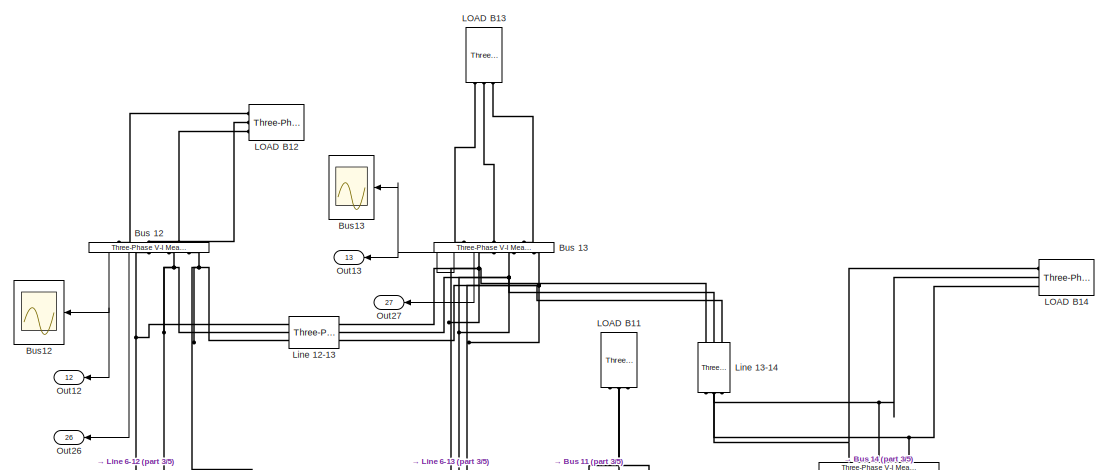
[diagram: root canvas - part 1/5, top center region]
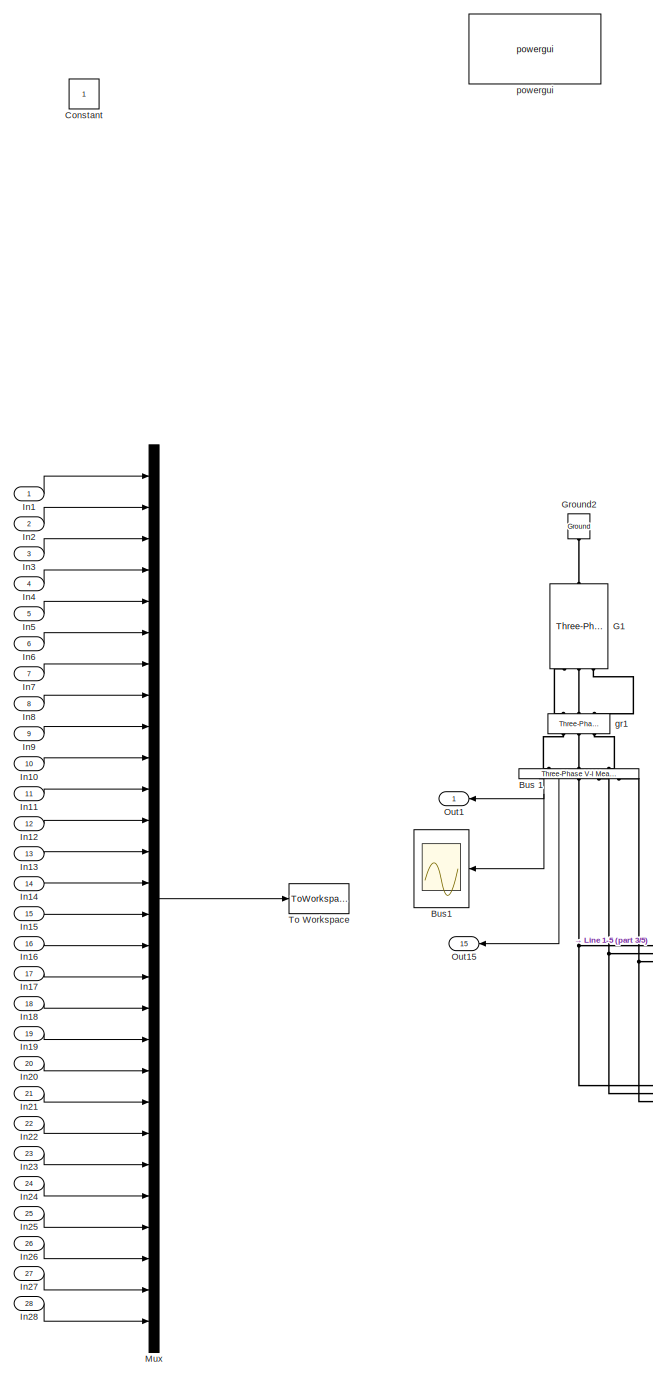
[diagram: root canvas - part 2/5, left side, full height]
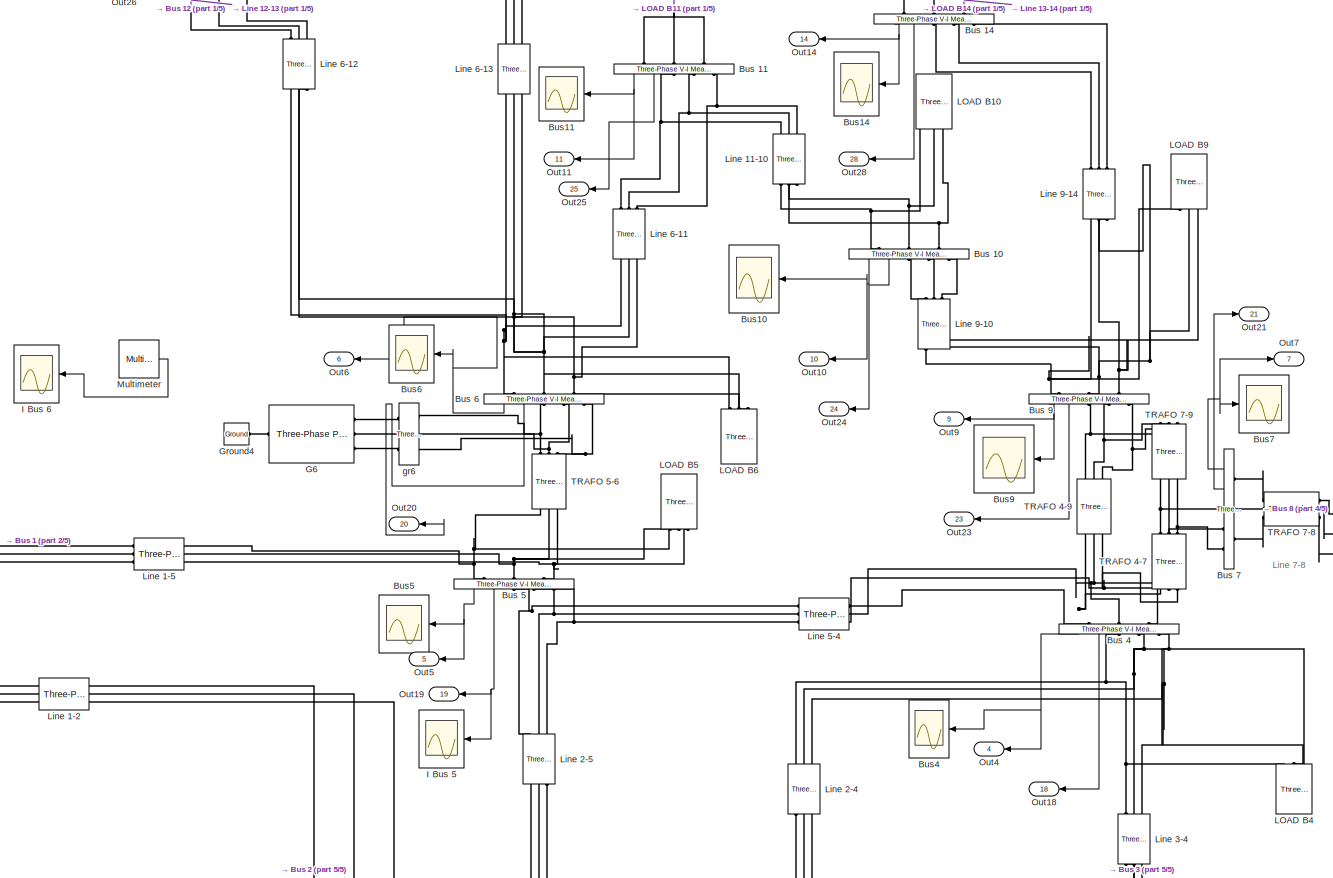
[diagram: root canvas - part 3/5, central region]
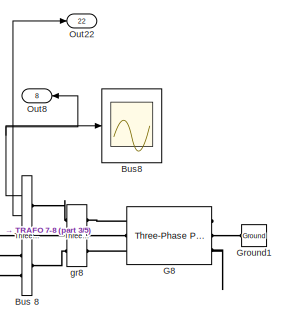
[diagram: root canvas - part 4/5, middle right region]
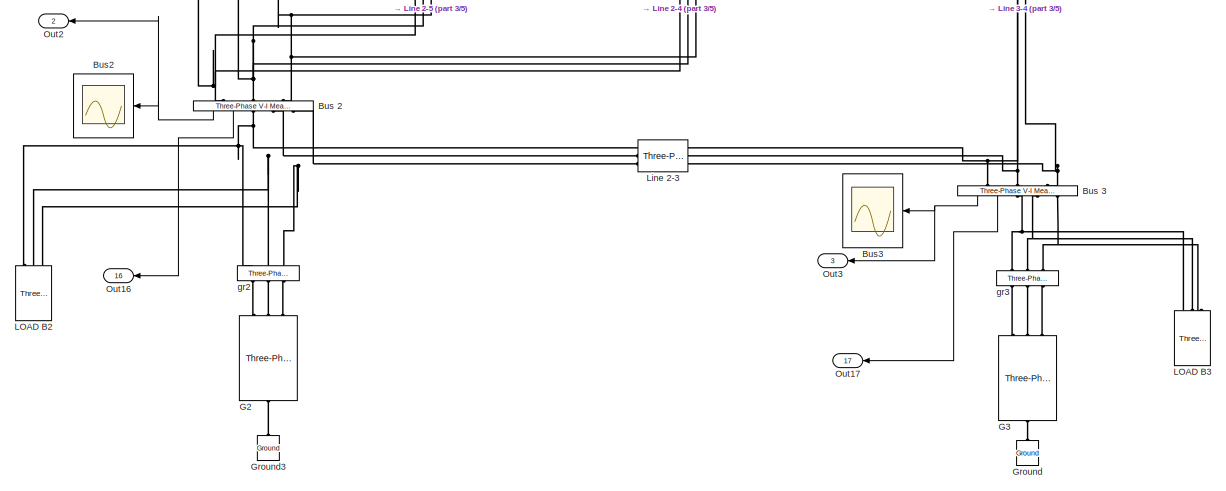
[diagram: root canvas - part 5/5, bottom center region]
MODEL slx_b9c40e7a43bc
KIND model
CONFIG AbsTol = auto
CONFIG EnableMultiTasking = on
CONFIG FixedStep = auto
CONFIG MaxStep = auto
CONFIG MinStep = auto
CONFIG RelTol = 1e-6
CONFIG SampleTimeConstraint = Unconstrained
CONFIG SolverName = ode15s
CONFIG StartTime = 0
CONFIG StopTime = 30/60
BLOCK [Reference] Bus 1  REF=spsThreePhaseVIMeasurementLib/Three-Phase
V-I Measurement
  NameLocation = left
  Ports = [0, 2, 0, 0, 0, 3, 3]
  SourceBlock = spsThreePhaseVIMeasurementLib/Three-Phase\nV-I Measurement
  SourceProductBaseCode = PS
  SourceType = Three-Phase VI Measurement
BLOCK [Reference] Bus 10  REF=spsThreePhaseVIMeasurementLib/Three-Phase
V-I Measurement
  NameLocation = left
  Ports = [0, 2, 0, 0, 0, 3, 3]
  SourceBlock = spsThreePhaseVIMeasurementLib/Three-Phase\nV-I Measurement
  SourceProductBaseCode = PS
  SourceType = Three-Phase VI Measurement
BLOCK [Reference] Bus 11  REF=spsThreePhaseVIMeasurementLib/Three-Phase
V-I Measurement
  NameLocation = left
  Ports = [0, 2, 0, 0, 0, 3, 3]
  SourceBlock = spsThreePhaseVIMeasurementLib/Three-Phase\nV-I Measurement
  SourceProductBaseCode = PS
  SourceType = Three-Phase VI Measurement
BLOCK [Reference] Bus 12  REF=spsThreePhaseVIMeasurementLib/Three-Phase
V-I Measurement
  NameLocation = left
  Ports = [0, 2, 0, 0, 0, 3, 3]
  SourceBlock = spsThreePhaseVIMeasurementLib/Three-Phase\nV-I Measurement
  SourceProductBaseCode = PS
  SourceType = Three-Phase VI Measurement
BLOCK [Reference] Bus 13  REF=spsThreePhaseVIMeasurementLib/Three-Phase
V-I Measurement
  NameLocation = left
  Ports = [0, 2, 0, 0, 0, 3, 3]
  SourceBlock = spsThreePhaseVIMeasurementLib/Three-Phase\nV-I Measurement
  SourceProductBaseCode = PS
  SourceType = Three-Phase VI Measurement
BLOCK [Reference] Bus 14  REF=spsThreePhaseVIMeasurementLib/Three-Phase
V-I Measurement
  NameLocation = left
  Ports = [0, 2, 0, 0, 0, 3, 3]
  SourceBlock = spsThreePhaseVIMeasurementLib/Three-Phase\nV-I Measurement
  SourceProductBaseCode = PS
  SourceType = Three-Phase VI Measurement
BLOCK [Reference] Bus 2  REF=spsThreePhaseVIMeasurementLib/Three-Phase
V-I Measurement
  NameLocation = left
  Ports = [0, 2, 0, 0, 0, 3, 3]
  SourceBlock = spsThreePhaseVIMeasurementLib/Three-Phase\nV-I Measurement
  SourceProductBaseCode = PS
  SourceType = Three-Phase VI Measurement
BLOCK [Reference] Bus 3  REF=spsThreePhaseVIMeasurementLib/Three-Phase
V-I Measurement
  NameLocation = left
  Ports = [0, 2, 0, 0, 0, 3, 3]
  SourceBlock = spsThreePhaseVIMeasurementLib/Three-Phase\nV-I Measurement
  SourceProductBaseCode = PS
  SourceType = Three-Phase VI Measurement
BLOCK [Reference] Bus 4  REF=spsThreePhaseVIMeasurementLib/Three-Phase
V-I Measurement
  NameLocation = left
  Ports = [0, 2, 0, 0, 0, 3, 3]
  SourceBlock = spsThreePhaseVIMeasurementLib/Three-Phase\nV-I Measurement
  SourceProductBaseCode = PS
  SourceType = Three-Phase VI Measurement
BLOCK [Reference] Bus 5  REF=spsThreePhaseVIMeasurementLib/Three-Phase
V-I Measurement
  NameLocation = left
  Ports = [0, 2, 0, 0, 0, 3, 3]
  SourceBlock = spsThreePhaseVIMeasurementLib/Three-Phase\nV-I Measurement
  SourceProductBaseCode = PS
  SourceType = Three-Phase VI Measurement
BLOCK [Reference] Bus 6  REF=spsThreePhaseVIMeasurementLib/Three-Phase
V-I Measurement
  NameLocation = left
  Ports = [0, 2, 0, 0, 0, 3, 3]
  SourceBlock = spsThreePhaseVIMeasurementLib/Three-Phase\nV-I Measurement
  SourceProductBaseCode = PS
  SourceType = Three-Phase VI Measurement
BLOCK [Reference] Bus 7  REF=spsThreePhaseVIMeasurementLib/Three-Phase
V-I Measurement
  NameLocation = top
  Ports = [0, 2, 0, 0, 0, 3, 3]
  SourceBlock = spsThreePhaseVIMeasurementLib/Three-Phase\nV-I Measurement
  SourceProductBaseCode = PS
  SourceType = Three-Phase VI Measurement
BLOCK [Reference] Bus 8  REF=spsThreePhaseVIMeasurementLib/Three-Phase
V-I Measurement
  NameLocation = top
  Ports = [0, 2, 0, 0, 0, 3, 3]
  SourceBlock = spsThreePhaseVIMeasurementLib/Three-Phase\nV-I Measurement
  SourceProductBaseCode = PS
  SourceType = Three-Phase VI Measurement
BLOCK [Reference] Bus 9  REF=spsThreePhaseVIMeasurementLib/Three-Phase
V-I Measurement
  NameLocation = left
  Ports = [0, 2, 0, 0, 0, 3, 3]
  SourceBlock = spsThreePhaseVIMeasurementLib/Three-Phase\nV-I Measurement
  SourceProductBaseCode = PS
  SourceType = Three-Phase VI Measurement
BLOCK [Scope] Bus1
  Floating = off
  NumInputPorts = 1
  Ports = [1]
  ScopeSpecificationString = Simulink.scopes.TimeScopeBlockCfg('CurrentConfiguration', extmgr.ConfigurationSet(extmgr.Configuration('Core','General UI',true),extmgr.Configuration('Core','Source UI',true),extmgr.Configuration('Sources','WiredSimulink',true,'DataLoggingVariableName','ScopeData8','DataLoggingSaveFormat','StructureWithTime','DataLoggingDecimation','1','DataLoggingDecimateData',true),extmgr.Configuration('Visuals'...<+1766ch>
BLOCK [Scope] Bus10
  Floating = off
  NumInputPorts = 1
  Ports = [1]
  ScopeSpecificationString = Simulink.scopes.TimeScopeBlockCfg('CurrentConfiguration', extmgr.ConfigurationSet(extmgr.Configuration('Core','General UI',true),extmgr.Configuration('Core','Source UI',true),extmgr.Configuration('Sources','WiredSimulink',true,'DataLoggingVariableName','ScopeData9','DataLoggingSaveFormat','StructureWithTime','DataLoggingDecimation','100','DataLoggingDecimateData',true),extmgr.Configuration('Visual...<+1784ch>
BLOCK [Scope] Bus11
  Floating = off
  NumInputPorts = 1
  Ports = [1]
  ScopeSpecificationString = Simulink.scopes.TimeScopeBlockCfg('CurrentConfiguration', extmgr.ConfigurationSet(extmgr.Configuration('Core','General UI',true),extmgr.Configuration('Core','Source UI',true),extmgr.Configuration('Sources','WiredSimulink',true,'DataLoggingVariableName','ScopeData7','DataLoggingSaveFormat','StructureWithTime','DataLoggingDecimation','1','DataLoggingDecimateData',true),extmgr.Configuration('Visuals'...<+1781ch>
BLOCK [Scope] Bus12
  Floating = off
  NumInputPorts = 1
  Ports = [1]
  ScopeSpecificationString = Simulink.scopes.TimeScopeBlockCfg('CurrentConfiguration', extmgr.ConfigurationSet(extmgr.Configuration('Core','General UI',true),extmgr.Configuration('Core','Source UI',true),extmgr.Configuration('Sources','WiredSimulink',true,'DataLoggingVariableName','ScopeData11','DataLoggingSaveFormat','StructureWithTime','DataLoggingDecimation','100','DataLoggingDecimateData',true),extmgr.Configuration('Visua...<+1757ch>
BLOCK [Scope] Bus13
  Floating = off
  NumInputPorts = 1
  Ports = [1]
  ScopeSpecificationString = Simulink.scopes.TimeScopeBlockCfg('CurrentConfiguration', extmgr.ConfigurationSet(extmgr.Configuration('Core','General UI',true),extmgr.Configuration('Core','Source UI',true),extmgr.Configuration('Sources','WiredSimulink',true,'DataLoggingVariableName','ScopeData12','DataLoggingSaveFormat','StructureWithTime','DataLoggingDecimation','100','DataLoggingDecimateData',true),extmgr.Configuration('Visua...<+1784ch>
BLOCK [Scope] Bus14
  Floating = off
  NumInputPorts = 1
  Ports = [1]
  ScopeSpecificationString = Simulink.scopes.TimeScopeBlockCfg('CurrentConfiguration', extmgr.ConfigurationSet(extmgr.Configuration('Core','General UI',true),extmgr.Configuration('Core','Source UI',true),extmgr.Configuration('Sources','WiredSimulink',true,'DataLoggingVariableName','ScopeData13','DataLoggingSaveFormat','StructureWithTime','DataLoggingDecimation','100','DataLoggingDecimateData',true),extmgr.Configuration('Visua...<+1765ch>
BLOCK [Scope] Bus2
  Floating = off
  NumInputPorts = 1
  Ports = [1]
  ScopeSpecificationString = Simulink.scopes.TimeScopeBlockCfg('CurrentConfiguration', extmgr.ConfigurationSet(extmgr.Configuration('Core','General UI',true),extmgr.Configuration('Core','Source UI',true),extmgr.Configuration('Sources','WiredSimulink',true,'DataLoggingVariableName','ScopeData18','DataLoggingSaveFormat','StructureWithTime','DataLoggingDecimation','1','DataLoggingDecimateData',true),extmgr.Configuration('Visuals...<+1779ch>
BLOCK [Scope] Bus3
  Floating = off
  NumInputPorts = 1
  Ports = [1]
  ScopeSpecificationString = Simulink.scopes.TimeScopeBlockCfg('CurrentConfiguration', extmgr.ConfigurationSet(extmgr.Configuration('Core','General UI',true),extmgr.Configuration('Core','Source UI',true),extmgr.Configuration('Sources','WiredSimulink',true,'DataLoggingSaveFormat','StructureWithTime','DataLoggingDecimation','1','DataLoggingDecimateData',true),extmgr.Configuration('Visuals','Time Domain',true,'SerializedDisplays...<+1739ch>
BLOCK [Scope] Bus4
  Floating = off
  NumInputPorts = 1
  Ports = [1]
  ScopeSpecificationString = Simulink.scopes.TimeScopeBlockCfg('CurrentConfiguration', extmgr.ConfigurationSet(extmgr.Configuration('Core','General UI',true),extmgr.Configuration('Core','Source UI',true),extmgr.Configuration('Sources','WiredSimulink',true,'DataLoggingVariableName','ScopeData2','DataLoggingSaveFormat','StructureWithTime','DataLoggingDecimation','1','DataLoggingDecimateData',true),extmgr.Configuration('Visuals'...<+1753ch>
BLOCK [Scope] Bus5
  Floating = off
  NumInputPorts = 1
  Ports = [1]
  ScopeSpecificationString = Simulink.scopes.TimeScopeBlockCfg('CurrentConfiguration', extmgr.ConfigurationSet(extmgr.Configuration('Core','General UI',true),extmgr.Configuration('Core','Source UI',true),extmgr.Configuration('Sources','WiredSimulink',true,'DataLoggingVariableName','ScopeData4','DataLoggingSaveFormat','StructureWithTime','DataLoggingDecimation','100','DataLoggingDecimateData',true),extmgr.Configuration('Visual...<+1778ch>
BLOCK [Scope] Bus6
  Floating = off
  NumInputPorts = 1
  Ports = [1]
  ScopeSpecificationString = Simulink.scopes.TimeScopeBlockCfg('CurrentConfiguration', extmgr.ConfigurationSet(extmgr.Configuration('Core','General UI',true),extmgr.Configuration('Core','Source UI',true),extmgr.Configuration('Sources','WiredSimulink',true,'DataLoggingVariableName','ScopeData19','DataLoggingSaveFormat','StructureWithTime','DataLoggingDecimation','1','DataLoggingDecimateData',true),extmgr.Configuration('Visuals...<+1779ch>
BLOCK [Scope] Bus7
  Floating = off
  NameLocation = top
  NumInputPorts = 1
  Ports = [1]
  ScopeSpecificationString = Simulink.scopes.TimeScopeBlockCfg('CurrentConfiguration', extmgr.ConfigurationSet(extmgr.Configuration('Core','General UI',true),extmgr.Configuration('Core','Source UI',true),extmgr.Configuration('Sources','WiredSimulink',true,'DataLoggingVariableName','ScopeData5','DataLoggingSaveFormat','StructureWithTime','DataLoggingDecimation','1','DataLoggingDecimateData',true),extmgr.Configuration('Visuals'...<+1761ch>
BLOCK [Scope] Bus8
  Floating = off
  NameLocation = top
  NumInputPorts = 1
  Ports = [1]
  ScopeSpecificationString = Simulink.scopes.TimeScopeBlockCfg('CurrentConfiguration', extmgr.ConfigurationSet(extmgr.Configuration('Core','General UI',true),extmgr.Configuration('Core','Source UI',true),extmgr.Configuration('Sources','WiredSimulink',true,'DataLoggingVariableName','ScopeData6','DataLoggingSaveFormat','StructureWithTime','DataLoggingDecimation','1','DataLoggingDecimateData',true),extmgr.Configuration('Visuals'...<+1780ch>
BLOCK [Scope] Bus9
  Floating = off
  NumInputPorts = 1
  Ports = [1]
  ScopeSpecificationString = Simulink.scopes.TimeScopeBlockCfg('CurrentConfiguration', extmgr.ConfigurationSet(extmgr.Configuration('Core','General UI',true),extmgr.Configuration('Core','Source UI',true),extmgr.Configuration('Sources','WiredSimulink',true,'DataLoggingVariableName','ScopeData1','DataLoggingSaveFormat','StructureWithTime','DataLoggingDecimation','1','DataLoggingDecimateData',true),extmgr.Configuration('Visuals'...<+1778ch>
BLOCK [Constant] Constant
  IOType = siggen
BLOCK [Reference] G1  REF=spsThreePhaseProgrammableVoltageSourceLib/Three-Phase
Programmable
Voltage Source
  NameLocation = left
  Ports = [0, 0, 0, 0, 0, 1, 3]
  SourceBlock = spsThreePhaseProgrammableVoltageSourceLib/Three-Phase\nProgrammable\nVoltage Source
  SourceProductBaseCode = PS
  SourceType = Three-Phase Programmable Voltage Source
BLOCK [Reference] G2  REF=spsThreePhaseProgrammableVoltageSourceLib/Three-Phase
Programmable
Voltage Source
  NameLocation = right
  Ports = [0, 0, 0, 0, 0, 1, 3]
  SourceBlock = spsThreePhaseProgrammableVoltageSourceLib/Three-Phase\nProgrammable\nVoltage Source
  SourceProductBaseCode = PS
  SourceType = Three-Phase Programmable Voltage Source
BLOCK [Reference] G3  REF=spsThreePhaseProgrammableVoltageSourceLib/Three-Phase
Programmable
Voltage Source
  NameLocation = right
  Ports = [0, 0, 0, 0, 0, 1, 3]
  SourceBlock = spsThreePhaseProgrammableVoltageSourceLib/Three-Phase\nProgrammable\nVoltage Source
  SourceProductBaseCode = PS
  SourceType = Three-Phase Programmable Voltage Source
BLOCK [Reference] G6  REF=spsThreePhaseProgrammableVoltageSourceLib/Three-Phase
Programmable
Voltage Source
  Ports = [0, 0, 0, 0, 0, 1, 3]
  SourceBlock = spsThreePhaseProgrammableVoltageSourceLib/Three-Phase\nProgrammable\nVoltage Source
  SourceProductBaseCode = PS
  SourceType = Three-Phase Programmable Voltage Source
BLOCK [Reference] G8  REF=spsThreePhaseProgrammableVoltageSourceLib/Three-Phase
Programmable
Voltage Source
  NameLocation = top
  Ports = [0, 0, 0, 0, 0, 1, 3]
  SourceBlock = spsThreePhaseProgrammableVoltageSourceLib/Three-Phase\nProgrammable\nVoltage Source
  SourceProductBaseCode = PS
  SourceType = Three-Phase Programmable Voltage Source
BLOCK [Reference] Ground  REF=spsGroundLib/Ground
  NameLocation = right
  Ports = [0, 0, 0, 0, 0, 1]
  SourceBlock = spsGroundLib/Ground
  SourceProductBaseCode = PS
  SourceType = Ground
BLOCK [Reference] Ground1  REF=spsGroundLib/Ground
  NameLocation = top
  Ports = [0, 0, 0, 0, 0, 1]
  SourceBlock = spsGroundLib/Ground
  SourceProductBaseCode = PS
  SourceType = Ground
BLOCK [Reference] Ground2  REF=spsGroundLib/Ground
  NameLocation = left
  Ports = [0, 0, 0, 0, 0, 1]
  SourceBlock = spsGroundLib/Ground
  SourceProductBaseCode = PS
  SourceType = Ground
BLOCK [Reference] Ground3  REF=spsGroundLib/Ground
  NameLocation = right
  Ports = [0, 0, 0, 0, 0, 1]
  SourceBlock = spsGroundLib/Ground
  SourceProductBaseCode = PS
  SourceType = Ground
BLOCK [Reference] Ground4  REF=spsGroundLib/Ground
  Ports = [0, 0, 0, 0, 0, 1]
  SourceBlock = spsGroundLib/Ground
  SourceProductBaseCode = PS
  SourceType = Ground
BLOCK [Scope] I Bus 5
  Floating = off
  NumInputPorts = 1
  Ports = [1]
  ScopeSpecificationString = Simulink.scopes.TimeScopeBlockCfg('CurrentConfiguration', extmgr.ConfigurationSet(extmgr.Configuration('Core','General UI',true),extmgr.Configuration('Core','Source UI',true),extmgr.Configuration('Sources','WiredSimulink',true,'DataLoggingVariableName','ScopeData2','DataLoggingSaveFormat','StructureWithTime','DataLoggingDecimation','1','DataLoggingDecimateData',true),extmgr.Configuration('Visuals'...<+1778ch>
BLOCK [Scope] I Bus 6  
  Floating = off
  NumInputPorts = 1
  Ports = [1]
  ScopeSpecificationString = Simulink.scopes.TimeScopeBlockCfg('CurrentConfiguration', extmgr.ConfigurationSet(extmgr.Configuration('Core','General UI',true),extmgr.Configuration('Core','Source UI',true),extmgr.Configuration('Sources','WiredSimulink',true,'DataLoggingVariableName','ScopeData1','DataLoggingSaveFormat','StructureWithTime','DataLoggingDecimation','1','DataLoggingDecimateData',true),extmgr.Configuration('Visuals'...<+1772ch>
BLOCK [Inport] In1
BLOCK [Inport] In10
  Port = 10
BLOCK [Inport] In11
  Port = 11
BLOCK [Inport] In12
  Port = 12
BLOCK [Inport] In13
  Port = 13
BLOCK [Inport] In14
  Port = 14
BLOCK [Inport] In15
  Port = 15
BLOCK [Inport] In16
  Port = 16
BLOCK [Inport] In17
  Port = 17
BLOCK [Inport] In18
  Port = 18
BLOCK [Inport] In19
  Port = 19
BLOCK [Inport] In2
  Port = 2
BLOCK [Inport] In20
  Port = 20
BLOCK [Inport] In21
  Port = 21
BLOCK [Inport] In22
  Port = 22
BLOCK [Inport] In23
  Port = 23
BLOCK [Inport] In24
  Port = 24
BLOCK [Inport] In25
  Port = 25
BLOCK [Inport] In26
  Port = 26
BLOCK [Inport] In27
  Port = 27
BLOCK [Inport] In28
  Port = 28
BLOCK [Inport] In3
  Port = 3
BLOCK [Inport] In4
  Port = 4
BLOCK [Inport] In5
  Port = 5
BLOCK [Inport] In6
  Port = 6
BLOCK [Inport] In7
  Port = 7
BLOCK [Inport] In8
  Port = 8
BLOCK [Inport] In9
  Port = 9
BLOCK [Reference] LOAD B10  REF=spsThreePhaseSeriesRLCLoadLib/Three-Phase
Series RLC Load
  AttributesFormatString = \n
  NameLocation = left
  Ports = [0, 0, 0, 0, 0, 3]
  SourceBlock = spsThreePhaseSeriesRLCLoadLib/Three-Phase\nSeries RLC Load
  SourceProductBaseCode = PS
  SourceType = Three-Phase Series RLC Load
BLOCK [Reference] LOAD B11  REF=spsThreePhaseSeriesRLCLoadLib/Three-Phase
Series RLC Load
  AttributesFormatString = \n
  NameLocation = left
  Ports = [0, 0, 0, 0, 0, 3]
  SourceBlock = spsThreePhaseSeriesRLCLoadLib/Three-Phase\nSeries RLC Load
  SourceProductBaseCode = PS
  SourceType = Three-Phase Series RLC Load
BLOCK [Reference] LOAD B12  REF=spsThreePhaseSeriesRLCLoadLib/Three-Phase
Series RLC Load
  AttributesFormatString = \n
  NameLocation = top
  Ports = [0, 0, 0, 0, 0, 3]
  SourceBlock = spsThreePhaseSeriesRLCLoadLib/Three-Phase\nSeries RLC Load
  SourceProductBaseCode = PS
  SourceType = Three-Phase Series RLC Load
BLOCK [Reference] LOAD B13  REF=spsThreePhaseSeriesRLCLoadLib/Three-Phase
Series RLC Load
  AttributesFormatString = \n
  NameLocation = left
  Ports = [0, 0, 0, 0, 0, 3]
  SourceBlock = spsThreePhaseSeriesRLCLoadLib/Three-Phase\nSeries RLC Load
  SourceProductBaseCode = PS
  SourceType = Three-Phase Series RLC Load
BLOCK [Reference] LOAD B14  REF=spsThreePhaseSeriesRLCLoadLib/Three-Phase
Series RLC Load
  AttributesFormatString = \n
  NameLocation = top
  Ports = [0, 0, 0, 0, 0, 3]
  SourceBlock = spsThreePhaseSeriesRLCLoadLib/Three-Phase\nSeries RLC Load
  SourceProductBaseCode = PS
  SourceType = Three-Phase Series RLC Load
BLOCK [Reference] LOAD B2  REF=spsThreePhaseSeriesRLCLoadLib/Three-Phase
Series RLC Load
  AttributesFormatString = \n
  NameLocation = right
  Ports = [0, 0, 0, 0, 0, 3]
  SourceBlock = spsThreePhaseSeriesRLCLoadLib/Three-Phase\nSeries RLC Load
  SourceProductBaseCode = PS
  SourceType = Three-Phase Series RLC Load
BLOCK [Reference] LOAD B3  REF=spsThreePhaseSeriesRLCLoadLib/Three-Phase
Series RLC Load
  AttributesFormatString = \n
  NameLocation = right
  Ports = [0, 0, 0, 0, 0, 3]
  SourceBlock = spsThreePhaseSeriesRLCLoadLib/Three-Phase\nSeries RLC Load
  SourceProductBaseCode = PS
  SourceType = Three-Phase Series RLC Load
BLOCK [Reference] LOAD B4  REF=spsThreePhaseSeriesRLCLoadLib/Three-Phase
Series RLC Load
  AttributesFormatString = \n
  NameLocation = right
  Ports = [0, 0, 0, 0, 0, 3]
  SourceBlock = spsThreePhaseSeriesRLCLoadLib/Three-Phase\nSeries RLC Load
  SourceProductBaseCode = PS
  SourceType = Three-Phase Series RLC Load
BLOCK [Reference] LOAD B5  REF=spsThreePhaseSeriesRLCLoadLib/Three-Phase
Series RLC Load
  AttributesFormatString = \n
  NameLocation = left
  Ports = [0, 0, 0, 0, 0, 3]
  SourceBlock = spsThreePhaseSeriesRLCLoadLib/Three-Phase\nSeries RLC Load
  SourceProductBaseCode = PS
  SourceType = Three-Phase Series RLC Load
BLOCK [Reference] LOAD B6  REF=spsThreePhaseSeriesRLCLoadLib/Three-Phase
Series RLC Load
  AttributesFormatString = \n
  NameLocation = right
  Ports = [0, 0, 0, 0, 0, 3]
  SourceBlock = spsThreePhaseSeriesRLCLoadLib/Three-Phase\nSeries RLC Load
  SourceProductBaseCode = PS
  SourceType = Three-Phase Series RLC Load
BLOCK [Reference] LOAD B9  REF=spsThreePhaseSeriesRLCLoadLib/Three-Phase
Series RLC Load
  AttributesFormatString = \n
  NameLocation = left
  Ports = [0, 0, 0, 0, 0, 3]
  SourceBlock = spsThreePhaseSeriesRLCLoadLib/Three-Phase\nSeries RLC Load
  SourceProductBaseCode = PS
  SourceType = Three-Phase Series RLC Load
BLOCK [Reference] Line 1-2  REF=spsThreePhasePISectionLineLib/Three-Phase
PI Section Line
  AttributesFormatString = \n
  Ports = [0, 0, 0, 0, 0, 3, 3]
  SourceBlock = spsThreePhasePISectionLineLib/Three-Phase\nPI Section Line
  SourceProductBaseCode = PS
  SourceType = Three-Phase PI Section Line
BLOCK [Reference] Line 1-5  REF=spsThreePhasePISectionLineLib/Three-Phase
PI Section Line
  AttributesFormatString = \n
  Ports = [0, 0, 0, 0, 0, 3, 3]
  SourceBlock = spsThreePhasePISectionLineLib/Three-Phase\nPI Section Line
  SourceProductBaseCode = PS
  SourceType = Three-Phase PI Section Line
BLOCK [Reference] Line 11-10  REF=spsThreePhasePISectionLineLib/Three-Phase
PI Section Line
  AttributesFormatString = \n
  NameLocation = left
  Ports = [0, 0, 0, 0, 0, 3, 3]
  SourceBlock = spsThreePhasePISectionLineLib/Three-Phase\nPI Section Line
  SourceProductBaseCode = PS
  SourceType = Three-Phase PI Section Line
BLOCK [Reference] Line 12-13   REF=spsThreePhasePISectionLineLib/Three-Phase
PI Section Line
  AttributesFormatString = \n
  Ports = [0, 0, 0, 0, 0, 3, 3]
  SourceBlock = spsThreePhasePISectionLineLib/Three-Phase\nPI Section Line
  SourceProductBaseCode = PS
  SourceType = Three-Phase PI Section Line
BLOCK [Reference] Line 13-14  REF=spsThreePhasePISectionLineLib/Three-Phase
PI Section Line
  AttributesFormatString = \n
  NameLocation = left
  Ports = [0, 0, 0, 0, 0, 3, 3]
  SourceBlock = spsThreePhasePISectionLineLib/Three-Phase\nPI Section Line
  SourceProductBaseCode = PS
  SourceType = Three-Phase PI Section Line
BLOCK [Reference] Line 2-3  REF=spsThreePhasePISectionLineLib/Three-Phase
PI Section Line
  AttributesFormatString = \n
  Ports = [0, 0, 0, 0, 0, 3, 3]
  SourceBlock = spsThreePhasePISectionLineLib/Three-Phase\nPI Section Line
  SourceProductBaseCode = PS
  SourceType = Three-Phase PI Section Line
BLOCK [Reference] Line 2-4  REF=spsThreePhasePISectionLineLib/Three-Phase
PI Section Line
  AttributesFormatString = \n
  NameLocation = left
  Ports = [0, 0, 0, 0, 0, 3, 3]
  SourceBlock = spsThreePhasePISectionLineLib/Three-Phase\nPI Section Line
  SourceProductBaseCode = PS
  SourceType = Three-Phase PI Section Line
BLOCK [Reference] Line 2-5  REF=spsThreePhasePISectionLineLib/Three-Phase
PI Section Line
  AttributesFormatString = \n
  NameLocation = left
  Ports = [0, 0, 0, 0, 0, 3, 3]
  SourceBlock = spsThreePhasePISectionLineLib/Three-Phase\nPI Section Line
  SourceProductBaseCode = PS
  SourceType = Three-Phase PI Section Line
BLOCK [Reference] Line 3-4  REF=spsThreePhasePISectionLineLib/Three-Phase
PI Section Line
  AttributesFormatString = \n
  NameLocation = left
  Ports = [0, 0, 0, 0, 0, 3, 3]
  SourceBlock = spsThreePhasePISectionLineLib/Three-Phase\nPI Section Line
  SourceProductBaseCode = PS
  SourceType = Three-Phase PI Section Line
BLOCK [Reference] Line 5-4  REF=spsThreePhasePISectionLineLib/Three-Phase
PI Section Line
  AttributesFormatString = \n
  Ports = [0, 0, 0, 0, 0, 3, 3]
  SourceBlock = spsThreePhasePISectionLineLib/Three-Phase\nPI Section Line
  SourceProductBaseCode = PS
  SourceType = Three-Phase PI Section Line
BLOCK [Reference] Line 6-11  REF=spsThreePhasePISectionLineLib/Three-Phase
PI Section Line
  AttributesFormatString = \n
  NameLocation = left
  Ports = [0, 0, 0, 0, 0, 3, 3]
  SourceBlock = spsThreePhasePISectionLineLib/Three-Phase\nPI Section Line
  SourceProductBaseCode = PS
  SourceType = Three-Phase PI Section Line
BLOCK [Reference] Line 6-12  REF=spsThreePhasePISectionLineLib/Three-Phase
PI Section Line
  AttributesFormatString = \n
  NameLocation = left
  Ports = [0, 0, 0, 0, 0, 3, 3]
  SourceBlock = spsThreePhasePISectionLineLib/Three-Phase\nPI Section Line
  SourceProductBaseCode = PS
  SourceType = Three-Phase PI Section Line
BLOCK [Reference] Line 6-13  REF=spsThreePhasePISectionLineLib/Three-Phase
PI Section Line
  AttributesFormatString = \n
  NameLocation = left
  Ports = [0, 0, 0, 0, 0, 3, 3]
  SourceBlock = spsThreePhasePISectionLineLib/Three-Phase\nPI Section Line
  SourceProductBaseCode = PS
  SourceType = Three-Phase PI Section Line
BLOCK [Reference] Line 9-10  REF=spsThreePhasePISectionLineLib/Three-Phase
PI Section Line
  AttributesFormatString = \n
  NameLocation = left
  Ports = [0, 0, 0, 0, 0, 3, 3]
  SourceBlock = spsThreePhasePISectionLineLib/Three-Phase\nPI Section Line
  SourceProductBaseCode = PS
  SourceType = Three-Phase PI Section Line
BLOCK [Reference] Line 9-14  REF=spsThreePhasePISectionLineLib/Three-Phase
PI Section Line
  AttributesFormatString = \n
  NameLocation = left
  Ports = [0, 0, 0, 0, 0, 3, 3]
  SourceBlock = spsThreePhasePISectionLineLib/Three-Phase\nPI Section Line
  SourceProductBaseCode = PS
  SourceType = Three-Phase PI Section Line
BLOCK [Reference] Multimeter  REF=spsMultimeterLib/Multimeter
  Ports = [0, 1]
  SourceBlock = spsMultimeterLib/Multimeter
  SourceProductBaseCode = PS
  SourceType = MultimeterPSB
BLOCK [Mux] Mux
  DisplayOption = bar
  Inputs = 28
  Ports = [28, 1]
BLOCK [Outport] Out1
  NameLocation = top
BLOCK [Outport] Out10
  NameLocation = top
  Port = 10
BLOCK [Outport] Out11
  NameLocation = top
  Port = 11
BLOCK [Outport] Out12
  NameLocation = top
  Port = 12
BLOCK [Outport] Out13
  NameLocation = top
  Port = 13
BLOCK [Outport] Out14
  NameLocation = top
  Port = 14
BLOCK [Outport] Out15
  NameLocation = top
  Port = 15
BLOCK [Outport] Out16
  NameLocation = top
  Port = 16
BLOCK [Outport] Out17
  NameLocation = top
  Port = 17
BLOCK [Outport] Out18
  NameLocation = top
  Port = 18
BLOCK [Outport] Out19
  NameLocation = top
  Port = 19
BLOCK [Outport] Out2
  NameLocation = top
  Port = 2
BLOCK [Outport] Out20
  NameLocation = top
  Port = 20
BLOCK [Outport] Out21
  Port = 21
BLOCK [Outport] Out22
  Port = 22
BLOCK [Outport] Out23
  NameLocation = top
  Port = 23
BLOCK [Outport] Out24
  NameLocation = top
  Port = 24
BLOCK [Outport] Out25
  NameLocation = top
  Port = 25
BLOCK [Outport] Out26
  NameLocation = top
  Port = 26
BLOCK [Outport] Out27
  NameLocation = top
  Port = 27
BLOCK [Outport] Out28
  NameLocation = top
  Port = 28
BLOCK [Outport] Out3
  NameLocation = top
  Port = 3
BLOCK [Outport] Out4
  NameLocation = top
  Port = 4
BLOCK [Outport] Out5
  NameLocation = top
  Port = 5
BLOCK [Outport] Out6
  NameLocation = top
  Port = 6
BLOCK [Outport] Out7
  Port = 7
BLOCK [Outport] Out8
  NameLocation = top
  Port = 8
BLOCK [Outport] Out9
  NameLocation = top
  Port = 9
BLOCK [Reference] TRAFO 4-7  REF=spsThreePhaseSeriesRLCBranchLib/Three-Phase
Series RLC Branch
  AttributesFormatString = \n
  NameLocation = right
  Ports = [0, 0, 0, 0, 0, 3, 3]
  SourceBlock = spsThreePhaseSeriesRLCBranchLib/Three-Phase\nSeries RLC Branch
  SourceProductBaseCode = PS
  SourceType = Three-Phase Series RLC Branch
BLOCK [Reference] TRAFO 4-9  REF=spsThreePhaseSeriesRLCBranchLib/Three-Phase
Series RLC Branch
  AttributesFormatString = \n
  NameLocation = right
  Ports = [0, 0, 0, 0, 0, 3, 3]
  SourceBlock = spsThreePhaseSeriesRLCBranchLib/Three-Phase\nSeries RLC Branch
  SourceProductBaseCode = PS
  SourceType = Three-Phase Series RLC Branch
BLOCK [Reference] TRAFO 5-6  REF=spsThreePhaseSeriesRLCBranchLib/Three-Phase
Series RLC Branch
  AttributesFormatString = \n
  NameLocation = right
  Ports = [0, 0, 0, 0, 0, 3, 3]
  SourceBlock = spsThreePhaseSeriesRLCBranchLib/Three-Phase\nSeries RLC Branch
  SourceProductBaseCode = PS
  SourceType = Three-Phase Series RLC Branch
BLOCK [Reference] TRAFO 7-8  REF=spsThreePhaseSeriesRLCBranchLib/Three-Phase
Series RLC Branch
  AttributesFormatString = \n
  Ports = [0, 0, 0, 0, 0, 3, 3]
  SourceBlock = spsThreePhaseSeriesRLCBranchLib/Three-Phase\nSeries RLC Branch
  SourceProductBaseCode = PS
  SourceType = Three-Phase Series RLC Branch
BLOCK [Reference] TRAFO 7-9  REF=spsThreePhaseSeriesRLCBranchLib/Three-Phase
Series RLC Branch
  AttributesFormatString = \n
  NameLocation = right
  Ports = [0, 0, 0, 0, 0, 3, 3]
  SourceBlock = spsThreePhaseSeriesRLCBranchLib/Three-Phase\nSeries RLC Branch
  SourceProductBaseCode = PS
  SourceType = Three-Phase Series RLC Branch
BLOCK [ToWorkspace] To Workspace
  FixptAsFi = on
  MaxDataPoints = inf
  Ports = [1]
  SampleTime = -1
  SaveFormat = Timeseries
  VariableName = IEEE14_PV
BLOCK [Reference] gr1  REF=spsThreePhaseSeriesRLCBranchLib/Three-Phase
Series RLC Branch
  AttributesFormatString = \n
  NameLocation = right
  Ports = [0, 0, 0, 0, 0, 3, 3]
  SourceBlock = spsThreePhaseSeriesRLCBranchLib/Three-Phase\nSeries RLC Branch
  SourceProductBaseCode = PS
  SourceType = Three-Phase Series RLC Branch
BLOCK [Reference] gr2  REF=spsThreePhaseSeriesRLCBranchLib/Three-Phase
Series RLC Branch
  AttributesFormatString = \n
  NameLocation = left
  Ports = [0, 0, 0, 0, 0, 3, 3]
  SourceBlock = spsThreePhaseSeriesRLCBranchLib/Three-Phase\nSeries RLC Branch
  SourceProductBaseCode = PS
  SourceType = Three-Phase Series RLC Branch
BLOCK [Reference] gr3  REF=spsThreePhaseSeriesRLCBranchLib/Three-Phase
Series RLC Branch
  AttributesFormatString = \n
  NameLocation = left
  Ports = [0, 0, 0, 0, 0, 3, 3]
  SourceBlock = spsThreePhaseSeriesRLCBranchLib/Three-Phase\nSeries RLC Branch
  SourceProductBaseCode = PS
  SourceType = Three-Phase Series RLC Branch
BLOCK [Reference] gr6  REF=spsThreePhaseSeriesRLCBranchLib/Three-Phase
Series RLC Branch
  AttributesFormatString = \n
  Ports = [0, 0, 0, 0, 0, 3, 3]
  SourceBlock = spsThreePhaseSeriesRLCBranchLib/Three-Phase\nSeries RLC Branch
  SourceProductBaseCode = PS
  SourceType = Three-Phase Series RLC Branch
BLOCK [Reference] gr8  REF=spsThreePhaseSeriesRLCBranchLib/Three-Phase
Series RLC Branch
  AttributesFormatString = \n
  Ports = [0, 0, 0, 0, 0, 3, 3]
  SourceBlock = spsThreePhaseSeriesRLCBranchLib/Three-Phase\nSeries RLC Branch
  SourceProductBaseCode = PS
  SourceType = Three-Phase Series RLC Branch
BLOCK [Reference] powergui  REF=spspowerguiLib/powergui
  Ports = []
  Priority = 1
  SourceBlock = spspowerguiLib/powergui
  SourceProductBaseCode = PS
  SourceType = PSB option menu block
ANNOTATION (root): Line 7-8
NET Bus 10:1 -> Bus10:1, Out10:1
LINE Bus 10:2 -> Out24:1
NET Bus 11:1 -> Bus11:1, Out11:1
LINE Bus 11:2 -> Out25:1
NET Bus 12:1 -> Bus12:1, Out12:1
LINE Bus 12:2 -> Out26:1
NET Bus 13:1 -> Bus13:1, Out13:1
LINE Bus 13:2 -> Out27:1
NET Bus 14:1 -> Bus14:1, Out14:1
LINE Bus 14:2 -> Out28:1
NET Bus 1:1 -> Bus1:1, Out1:1
LINE Bus 1:2 -> Out15:1
NET Bus 2:1 -> Bus2:1, Out2:1
LINE Bus 2:2 -> Out16:1
NET Bus 3:1 -> Bus3:1, Out3:1
LINE Bus 3:2 -> Out17:1
NET Bus 4:1 -> Bus4:1, Out4:1
LINE Bus 4:2 -> Out18:1
NET Bus 5:1 -> Bus5:1, Out5:1
NET Bus 5:2 -> I Bus 5:1, Out19:1
NET Bus 6:1 -> Bus6:1, Out6:1
LINE Bus 6:2 -> Out20:1
NET Bus 7:1 -> Bus7:1, Out7:1
LINE Bus 7:2 -> Out21:1
NET Bus 8:1 -> Bus8:1, Out8:1
LINE Bus 8:2 -> Out22:1
NET Bus 9:1 -> Bus9:1, Out9:1
LINE Bus 9:2 -> Out23:1
LINE In10:1 -> Mux:10
LINE In11:1 -> Mux:11
LINE In12:1 -> Mux:12
LINE In13:1 -> Mux:13
LINE In14:1 -> Mux:14
LINE In15:1 -> Mux:15
LINE In16:1 -> Mux:16
LINE In17:1 -> Mux:17
LINE In18:1 -> Mux:18
LINE In19:1 -> Mux:19
LINE In1:1 -> Mux:1
LINE In20:1 -> Mux:20
LINE In21:1 -> Mux:21
LINE In22:1 -> Mux:22
LINE In23:1 -> Mux:23
LINE In24:1 -> Mux:24
LINE In25:1 -> Mux:25
LINE In26:1 -> Mux:26
LINE In27:1 -> Mux:27
LINE In28:1 -> Mux:28
LINE In2:1 -> Mux:2
LINE In3:1 -> Mux:3
LINE In4:1 -> Mux:4
LINE In5:1 -> Mux:5
LINE In6:1 -> Mux:6
LINE In7:1 -> Mux:7
LINE In8:1 -> Mux:8
LINE In9:1 -> Mux:9
LINE Multimeter:1 -> I Bus 6  :1
LINE Mux:1 -> To Workspace:1
PNET net1: Bus 10:LConn1 -- LOAD B10:LConn1 -- Line 11-10:RConn1
PNET net2: Bus 10:LConn2 -- LOAD B10:LConn2 -- Line 11-10:RConn2
PNET net3: Bus 10:LConn3 -- LOAD B10:LConn3 -- Line 11-10:RConn3
PLINE Bus 10:RConn1 -- Line 9-10:LConn1
PLINE Bus 10:RConn2 -- Line 9-10:LConn2
PLINE Bus 10:RConn3 -- Line 9-10:LConn3
PLINE Bus 11:LConn1 -- LOAD B11:LConn1
PLINE Bus 11:LConn2 -- LOAD B11:LConn2
PLINE Bus 11:LConn3 -- LOAD B11:LConn3
PNET net4: Bus 11:RConn1 -- Line 11-10:LConn1 -- Line 6-11:LConn1
PNET net5: Bus 11:RConn2 -- Line 11-10:LConn2 -- Line 6-11:LConn2
PNET net6: Bus 11:RConn3 -- Line 11-10:LConn3 -- Line 6-11:LConn3
PLINE Bus 12:LConn1 -- LOAD B12:LConn1
PLINE Bus 12:LConn2 -- LOAD B12:LConn2
PLINE Bus 12:LConn3 -- LOAD B12:LConn3
PNET net7: Bus 12:RConn1 -- Line 12-13 :LConn1 -- Line 6-12:LConn1
PNET net8: Bus 12:RConn2 -- Line 12-13 :LConn2 -- Line 6-12:LConn2
PNET net9: Bus 12:RConn3 -- Line 12-13 :LConn3 -- Line 6-12:LConn3
PLINE Bus 13:LConn1 -- LOAD B13:LConn1
PLINE Bus 13:LConn2 -- LOAD B13:LConn2
PLINE Bus 13:LConn3 -- LOAD B13:LConn3
PNET net10: Bus 13:RConn1 -- Line 12-13 :RConn1 -- Line 13-14:LConn1 -- Line 6-13:LConn1
PNET net11: Bus 13:RConn2 -- Line 12-13 :RConn2 -- Line 13-14:LConn2 -- Line 6-13:LConn2
PNET net12: Bus 13:RConn3 -- Line 12-13 :RConn3 -- Line 13-14:LConn3 -- Line 6-13:LConn3
PNET net13: Bus 14:LConn1 -- LOAD B14:LConn1 -- Line 13-14:RConn1
PNET net14: Bus 14:LConn2 -- LOAD B14:LConn2 -- Line 13-14:RConn2
PNET net15: Bus 14:LConn3 -- LOAD B14:LConn3 -- Line 13-14:RConn3
PLINE Bus 14:RConn1 -- Line 9-14:LConn1
PLINE Bus 14:RConn2 -- Line 9-14:LConn2
PLINE Bus 14:RConn3 -- Line 9-14:LConn3
PLINE Bus 1:LConn1 -- gr1:LConn1
PLINE Bus 1:LConn2 -- gr1:LConn2
PLINE Bus 1:LConn3 -- gr1:LConn3
PNET net16: Bus 1:RConn1 -- Line 1-2:LConn1 -- Line 1-5:LConn1
PNET net17: Bus 1:RConn2 -- Line 1-2:LConn2 -- Line 1-5:LConn2
PNET net18: Bus 1:RConn3 -- Line 1-2:LConn3 -- Line 1-5:LConn3
PNET net19: Bus 2:LConn1 -- Line 1-2:RConn1 -- Line 2-4:RConn1 -- Line 2-5:RConn1
PNET net20: Bus 2:LConn2 -- Line 1-2:RConn2 -- Line 2-4:RConn2 -- Line 2-5:RConn2
PNET net21: Bus 2:LConn3 -- Line 1-2:RConn3 -- Line 2-4:RConn3 -- Line 2-5:RConn3
PNET net22: Bus 2:RConn1 -- LOAD B2:LConn1 -- Line 2-3:LConn1 -- gr2:LConn1
PNET net23: Bus 2:RConn2 -- LOAD B2:LConn2 -- Line 2-3:LConn2 -- gr2:LConn2
PNET net24: Bus 2:RConn3 -- LOAD B2:LConn3 -- Line 2-3:LConn3 -- gr2:LConn3
PNET net25: Bus 3:LConn1 -- Line 2-3:RConn1 -- Line 3-4:RConn1
PNET net26: Bus 3:LConn2 -- Line 2-3:RConn2 -- Line 3-4:RConn2
PNET net27: Bus 3:LConn3 -- Line 2-3:RConn3 -- Line 3-4:RConn3
PNET net28: Bus 3:RConn1 -- LOAD B3:LConn1 -- gr3:LConn1
PNET net29: Bus 3:RConn2 -- LOAD B3:LConn2 -- gr3:LConn2
PNET net30: Bus 3:RConn3 -- LOAD B3:LConn3 -- gr3:LConn3
PNET net31: Bus 4:LConn1 -- Line 5-4:RConn1 -- TRAFO 4-7:RConn1 -- TRAFO 4-9:RConn1
PNET net32: Bus 4:LConn2 -- Line 5-4:RConn2 -- TRAFO 4-7:RConn2 -- TRAFO 4-9:RConn2
PNET net33: Bus 4:LConn3 -- Line 5-4:RConn3 -- TRAFO 4-7:RConn3 -- TRAFO 4-9:RConn3
PNET net34: Bus 4:RConn1 -- LOAD B4:LConn1 -- Line 2-4:LConn1 -- Line 3-4:LConn1
PNET net35: Bus 4:RConn2 -- LOAD B4:LConn2 -- Line 2-4:LConn2 -- Line 3-4:LConn2
PNET net36: Bus 4:RConn3 -- LOAD B4:LConn3 -- Line 2-4:LConn3 -- Line 3-4:LConn3
PNET net37: Bus 5:LConn1 -- LOAD B5:LConn1 -- Line 1-5:RConn1 -- TRAFO 5-6:RConn1
PNET net38: Bus 5:LConn2 -- LOAD B5:LConn2 -- Line 1-5:RConn2 -- TRAFO 5-6:RConn2
PNET net39: Bus 5:LConn3 -- LOAD B5:LConn3 -- Line 1-5:RConn3 -- TRAFO 5-6:RConn3
PNET net40: Bus 5:RConn1 -- Line 2-5:LConn1 -- Line 5-4:LConn1
PNET net41: Bus 5:RConn2 -- Line 2-5:LConn2 -- Line 5-4:LConn2
PNET net42: Bus 5:RConn3 -- Line 2-5:LConn3 -- Line 5-4:LConn3
PNET net43: Bus 6:LConn1 -- LOAD B6:LConn1 -- Line 6-11:RConn1 -- Line 6-12:RConn1 -- Line 6-13:RConn1
PNET net44: Bus 6:LConn2 -- LOAD B6:LConn2 -- Line 6-11:RConn2 -- Line 6-12:RConn2 -- Line 6-13:RConn2
PNET net45: Bus 6:LConn3 -- LOAD B6:LConn3 -- Line 6-11:RConn3 -- Line 6-12:RConn3 -- Line 6-13:RConn3
PNET net46: Bus 6:RConn1 -- TRAFO 5-6:LConn1 -- gr6:RConn1
PNET net47: Bus 6:RConn2 -- TRAFO 5-6:LConn2 -- gr6:RConn2
PNET net48: Bus 6:RConn3 -- TRAFO 5-6:LConn3 -- gr6:RConn3
PLINE Bus 7:LConn1 -- TRAFO 7-8:RConn1
PLINE Bus 7:LConn2 -- TRAFO 7-8:RConn2
PLINE Bus 7:LConn3 -- TRAFO 7-8:RConn3
PNET net49: Bus 7:RConn1 -- TRAFO 4-7:LConn1 -- TRAFO 7-9:RConn1
PNET net50: Bus 7:RConn2 -- TRAFO 4-7:LConn2 -- TRAFO 7-9:RConn2
PNET net51: Bus 7:RConn3 -- TRAFO 4-7:LConn3 -- TRAFO 7-9:RConn3
PLINE Bus 8:LConn1 -- gr8:LConn1
PLINE Bus 8:LConn2 -- gr8:LConn2
PLINE Bus 8:LConn3 -- gr8:LConn3
PLINE Bus 8:RConn1 -- TRAFO 7-8:LConn1
PLINE Bus 8:RConn2 -- TRAFO 7-8:LConn2
PLINE Bus 8:RConn3 -- TRAFO 7-8:LConn3
PNET net52: Bus 9:LConn1 -- LOAD B9:LConn1 -- Line 9-10:RConn1 -- Line 9-14:RConn1
PNET net53: Bus 9:LConn2 -- LOAD B9:LConn2 -- Line 9-10:RConn2 -- Line 9-14:RConn2
PNET net54: Bus 9:LConn3 -- LOAD B9:LConn3 -- Line 9-10:RConn3 -- Line 9-14:RConn3
PNET net55: Bus 9:RConn1 -- TRAFO 4-9:LConn1 -- TRAFO 7-9:LConn1
PNET net56: Bus 9:RConn2 -- TRAFO 4-9:LConn2 -- TRAFO 7-9:LConn2
PNET net57: Bus 9:RConn3 -- TRAFO 4-9:LConn3 -- TRAFO 7-9:LConn3
PLINE G1:LConn1 -- Ground2:LConn1
PLINE G1:RConn1 -- gr1:RConn1
PLINE G1:RConn2 -- gr1:RConn2
PLINE G1:RConn3 -- gr1:RConn3
PLINE G2:LConn1 -- Ground3:LConn1
PLINE G2:RConn1 -- gr2:RConn1
PLINE G2:RConn2 -- gr2:RConn2
PLINE G2:RConn3 -- gr2:RConn3
PLINE G3:LConn1 -- Ground:LConn1
PLINE G3:RConn1 -- gr3:RConn1
PLINE G3:RConn2 -- gr3:RConn2
PLINE G3:RConn3 -- gr3:RConn3
PLINE G6:LConn1 -- Ground4:LConn1
PLINE G6:RConn1 -- gr6:LConn1
PLINE G6:RConn2 -- gr6:LConn2
PLINE G6:RConn3 -- gr6:LConn3
PLINE G8:LConn1 -- Ground1:LConn1
PLINE G8:RConn1 -- gr8:RConn1
PLINE G8:RConn2 -- gr8:RConn2
PLINE G8:RConn3 -- gr8:RConn3
note: NET lines group one-source signal fan-out (src -> all destinations, sorted); 1:1 wires keep LINE; PNET lines group multi-terminal physical nets as a canonical sorted terminal list (undirected conserving connections); 2-terminal nets keep the pairwise PLINE form
